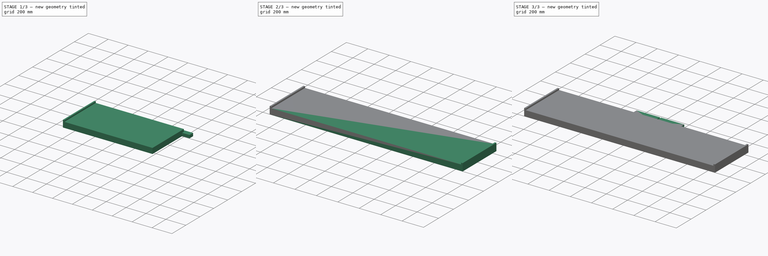
[diagram: build sequence overview — one tinted view per stage of 3, left to right]
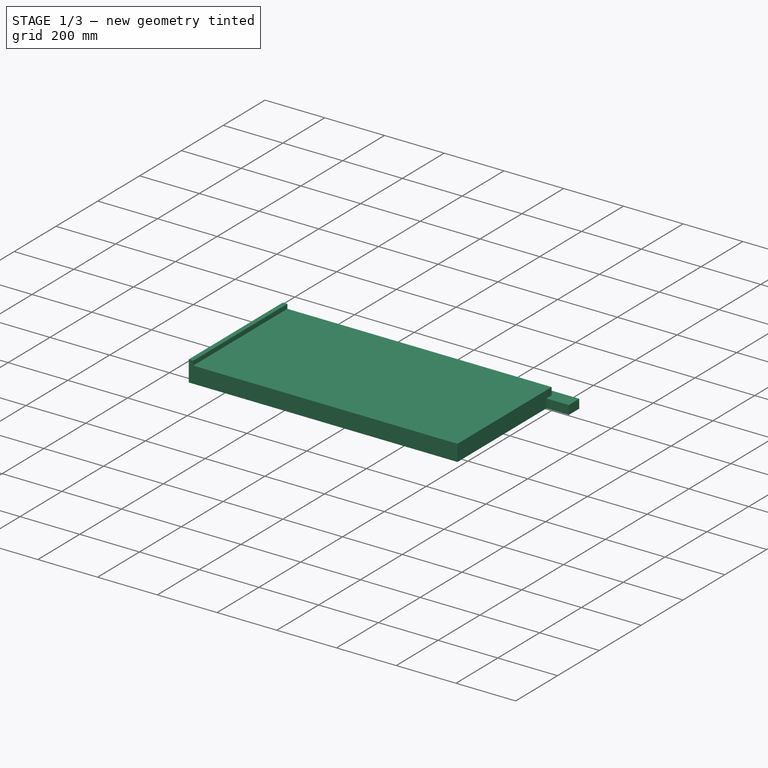
[diagram: stage 1 of 3 — iso view after this stage's code; geometry added in this stage tinted green]
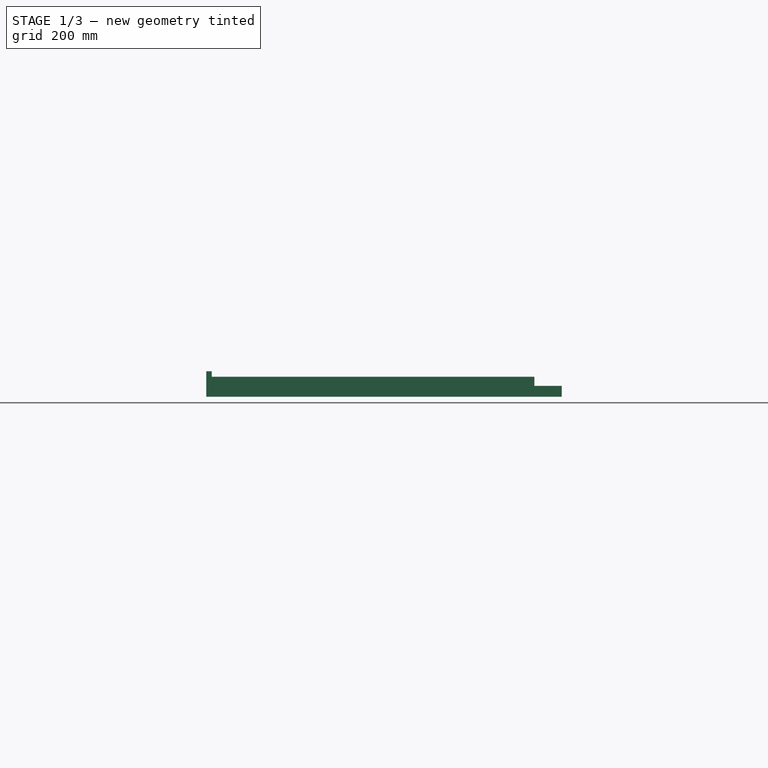
[diagram: stage 1 of 3 — front view after this stage's code; geometry added in this stage tinted green]
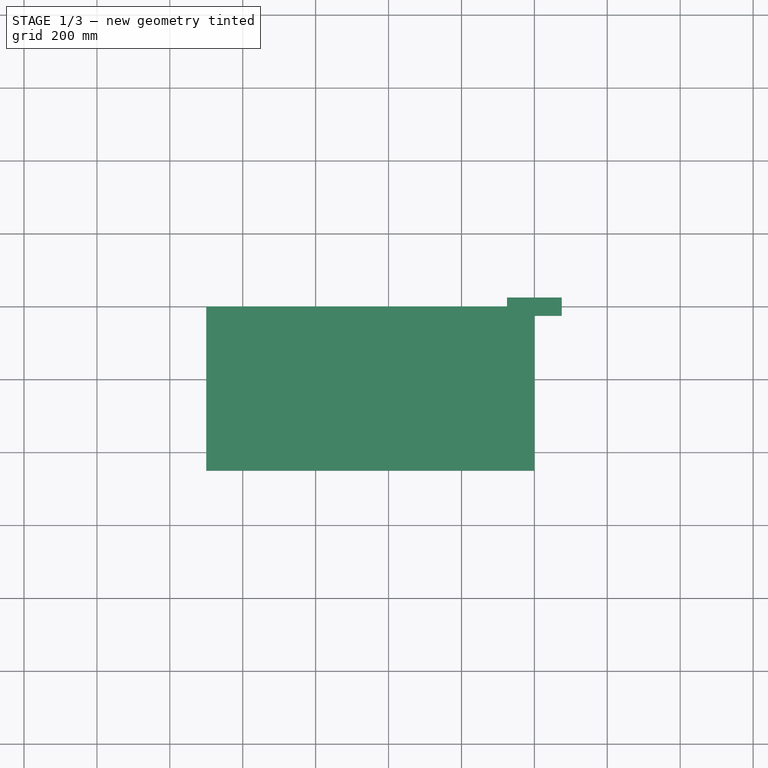
[diagram: stage 1 of 3 — top view after this stage's code; geometry added in this stage tinted green]
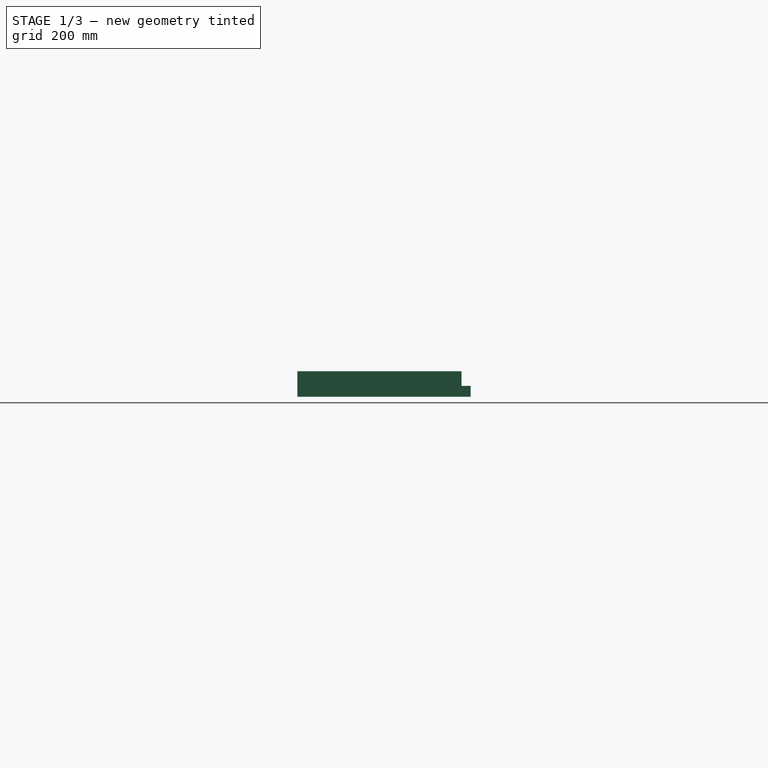
[diagram: stage 1 of 3 — right view after this stage's code; geometry added in this stage tinted green]
FCSTD DOCUMENT  (FreeCAD 1.1R20260414 (Git shallow))
Label: Aire_de_jeu_2026
License: All rights reserved
LicenseURL: https://en.wikipedia.org/wiki/All_rights_reserved
objects: App::LinkElement×29, App::Link×22, App::Point×10, Image::ImagePlane×8, App::Part×6, Part::Feature×5, Sketcher::SketchObject×4, PartDesign::Pad×4, PartDesign::Body×4, PartDesign::Mirrored×1
note: 31 computed .brp shape members not serialized (recipe doc carries the construction recipe); baked Part::Feature solids carry a one-line shape summary decoded from their .brp
EXTERNAL_REF file=GROS_BOT/Robot_CRLG.FCStd obj=Part

FEATURE [PartDesign::Body] Body004  label="support_calc_002"
  AllowCompound = false
  Group = -> [Sketch004,Pad004]
  Origin = -> Origin036
  Placement = pos=(225,1122,50) rot=(0,0,1;0rad)
  Tip = -> Pad004
FEATURE [App::LinkElement] Link007_i0
  LinkedObject = -> Part__Feature006
  _LinkOwner = 1159
FEATURE [App::LinkElement] Link007_i1
  LinkPlacement = pos=(950,-3088,-4.76837e-07) rot=(0,0,1;3.14159rad)
  LinkedObject = -> Part__Feature006
  Placement = pos=(950,-3088,-4.76837e-07) rot=(0,0,1;3.14159rad)
  _LinkOwner = 1159
FEATURE [App::Link] Link007  label="support balise001"
  ElementCount = 2
  ElementList = -> [Link007_i0,Link007_i1]
  LinkPlacement = pos=(-1544,-950.001,0) rot=(0,0,1;1.5708rad)
  LinkedObject = -> Part__Feature006
  Placement = pos=(-1544,-950.001,0) rot=(0,0,1;1.5708rad)
FEATURE [App::Part] Part  label="Supports_balise"
  Group = -> [Link007,Part__Feature008,Link,Link009]
  Origin = -> Origin
FEATURE [Part::Feature] Part__Feature  label="curseur_jaune"
  Placement = pos=(-1300,-1024,65) rot=(0,0,1;4.71239rad)
  shape: bbox 100 x 45 x 100 mm, 19 faces (baked)
FEATURE [App::Link] Link010  label="curseur_bleu"
  LinkPlacement = pos=(1300,-1024,65) rot=(0,0,-1;1.5708rad)
  LinkedObject = -> Part__Feature
  Placement = pos=(1300,-1024,65) rot=(0,0,-1;1.5708rad)
FEATURE [Image::ImagePlane] table  label="table001"
  XSize = 3000
  YSize = 2000
FEATURE [Sketcher::SketchObject] Sketch
  ArcFitTolerance = 1e-06
  AttachmentSupport = -> [XY_Plane037]
  ExternalTypes = [0]
  FullyConstrained = true
  MakeInternals = false
  MapMode = 5
  _ExternalGeoVersion = 0
  sketch-geometry (4):
    g0: LineSegment StartX=-75 StartY=25 StartZ=0 EndX=-75 EndY=-25 EndZ=0
    g1: LineSegment StartX=-75 StartY=-25 StartZ=0 EndX=75 EndY=-25 EndZ=0
    g2: LineSegment StartX=75 StartY=-25 StartZ=0 EndX=75 EndY=25 EndZ=0
    g3: LineSegment StartX=75 StartY=25 StartZ=0 EndX=-75 EndY=25 EndZ=0
  constraints (11):
    c: Coincident(g0,g1)
    c: Coincident(g1,g2)
    c: Coincident(g2,g3)
    c: Coincident(g3,g0)
    c: Vertical(g0)
    c: Vertical(g2)
    c: Horizontal(g1)
    c: Horizontal(g3)
    c: Symmetric(g2,g0,g-1)
    c: DistanceY(g0,g0) = 50
    c: DistanceX(g3,g3) = 150
FEATURE [PartDesign::Pad] Pad
  Direction = (0,0,1)
  Length = 30
  Length2 = 10
  Profile = -> Sketch
  ReferenceAxis = -> Sketch [N_Axis]
  SideType = 0
  Suppressed = false
  Type = 0
  Type2 = 0
FEATURE [PartDesign::Body] Body  label="caisse_noisette_part"
  AllowCompound = false
  Group = -> [Sketch,Pad]
  Origin = -> Origin037
  Tip = -> Pad
FEATURE [Sketcher::SketchObject] Sketch005
  ArcFitTolerance = 1e-06
  AttachmentSupport = -> [XZ_Plane038]
  ExternalTypes = [0]
  FullyConstrained = true
  MakeInternals = false
  MapMode = 5
  Placement = pos=(0,0,0) rot=(1,0,0;1.5708rad)
  _ExternalGeoVersion = 0
  expr: Constraints[12] = 1800 / 2
  sketch-geometry (6):
    g0: LineSegment StartX=-900 StartY=0 StartZ=0 EndX=0 EndY=0 EndZ=0
    g1: LineSegment StartX=0 StartY=0 StartZ=0 EndX=0 EndY=55 EndZ=0
    g2: LineSegment StartX=-885 StartY=70 StartZ=0 EndX=-900 EndY=70 EndZ=0
    g3: LineSegment StartX=-900 StartY=70 StartZ=0 EndX=-900 EndY=0 EndZ=0
    g4: LineSegment StartX=-885 StartY=70 StartZ=0 EndX=-885 EndY=55 EndZ=0
    g5: LineSegment StartX=-885 StartY=55 StartZ=0 EndX=0 EndY=55 EndZ=0
  constraints (17):
    c: Coincident(g0,g1)
    c: Coincident(g2,g3)
    c: Coincident(g3,g0)
    c: Horizontal(g0)
    c: Horizontal(g2)
    c: Vertical(g1)
    c: Vertical(g3)
    c: Vertical(g4)
    c: Coincident(g5,g4)
    c: Horizontal(g5)
    c: Coincident(g2,g4)
    c: Coincident(g1,g5)
    c: DistanceX(g0,g0) = 900
    c: DistanceY(g3,g3) = 70
    c: DistanceX(g2,g2) = 15
    c: DistanceY(g-1,g4) = 55
    c: Coincident(g0,g-1)
FEATURE [PartDesign::Pad] Pad005
  Direction = (0,-1,2e-16)
  Length = 450
  Length2 = 10
  Placement = pos=(0,0,0) rot=(1,0,0;1.5708rad)
  Profile = -> Sketch005
  ReferenceAxis = -> Sketch005 [N_Axis]
  SideType = 0
  Suppressed = false
  Type = 0
  Type2 = 0
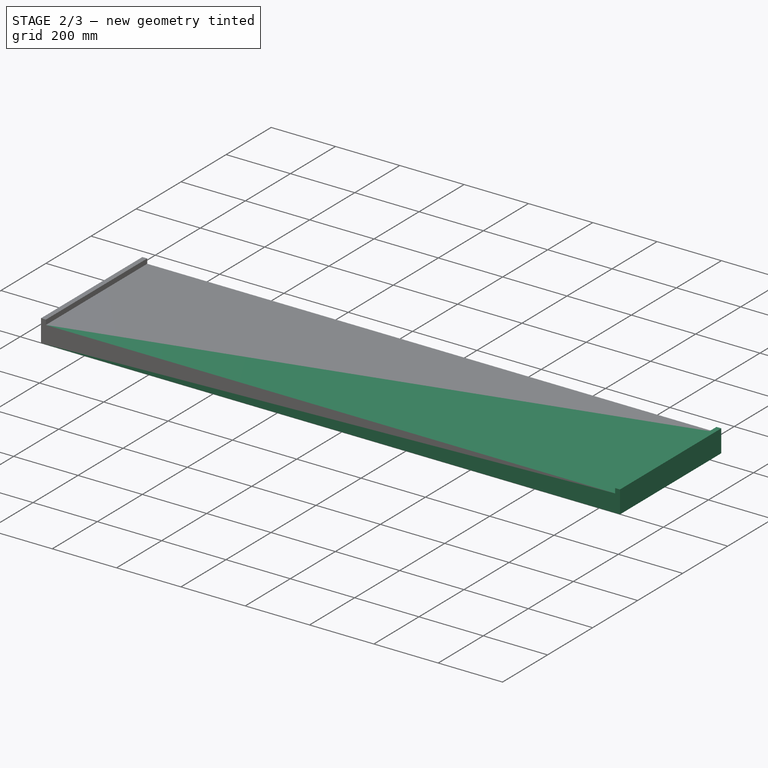
[diagram: stage 2 of 3 — iso view after this stage's code; geometry added in this stage tinted green]
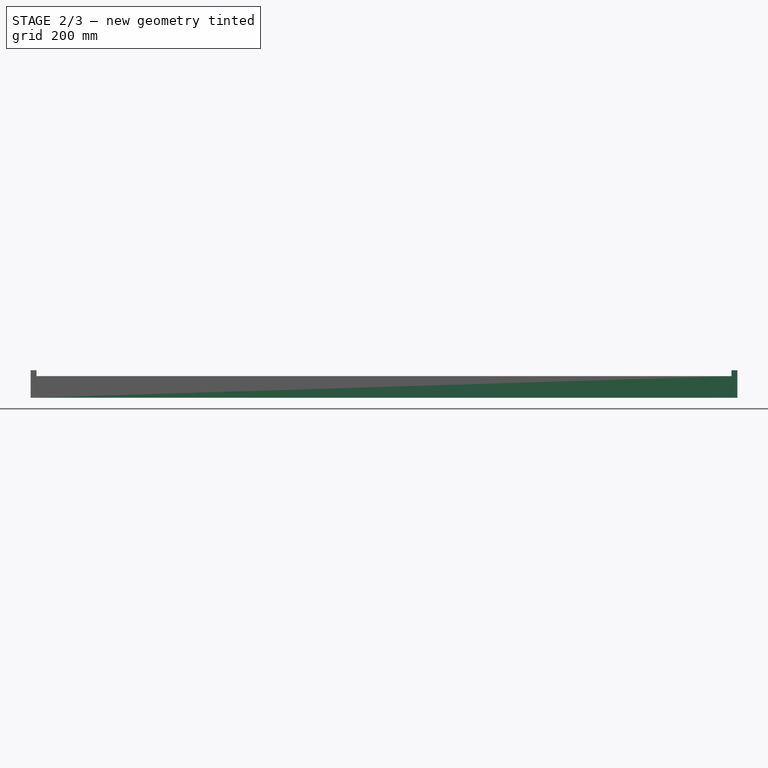
[diagram: stage 2 of 3 — front view after this stage's code; geometry added in this stage tinted green]
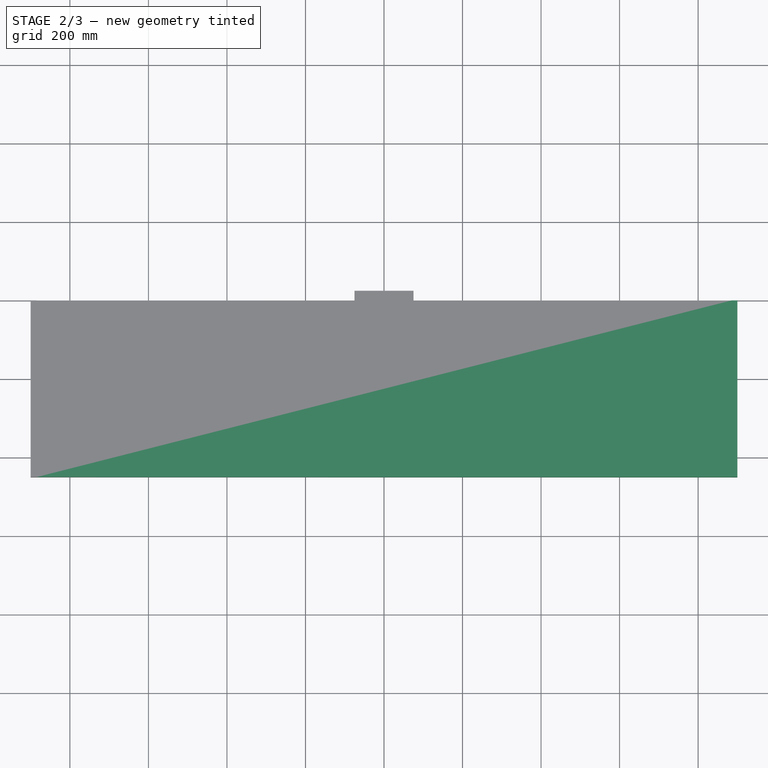
[diagram: stage 2 of 3 — top view after this stage's code; geometry added in this stage tinted green]
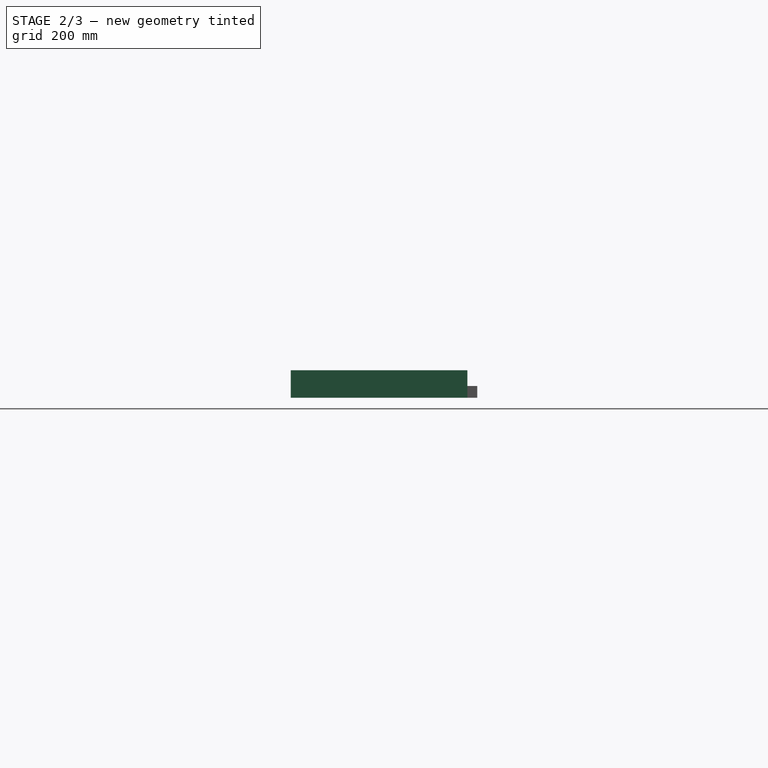
[diagram: stage 2 of 3 — right view after this stage's code; geometry added in this stage tinted green]
FEATURE [PartDesign::Mirrored] Mirrored
  BaseFeature = -> Pad005
  MirrorPlane = -> Sketch005 [V_Axis]
  Originals = -> [Pad005]
  Placement = pos=(0,0,0) rot=(1,0,0;1.5708rad)
  Refine = true
  Suppressed = false
  TransformMode = 0
FEATURE [PartDesign::Body] Body005  label="Grenier"
  AllowCompound = false
  Group = -> [Sketch005,Pad005,Mirrored]
  Origin = -> Origin038
  Placement = pos=(0,1000,0) rot=(0,0,1;0rad)
  Tip = -> Mirrored
FEATURE [App::Part] Part010  label="composants_table"
  Group = -> [Part__Feature001,Part__Feature006,Part__Feature007,Part,Body003,Body004,Body005]
  Origin = -> Origin016
FEATURE [Image::ImagePlane] grenier
  Placement = pos=(8,777,55) rot=(0,0,1;0rad)
  XSize = 1792.55
  YSize = 451.143
FEATURE [App::LinkElement] Link011_i0
  LinkedObject = -> Part012
  _LinkOwner = 1638
FEATURE [App::LinkElement] Link011_i1
  LinkPlacement = pos=(0,50,30) rot=(1,0,0;3.14159rad)
  LinkedObject = -> Part012
  Placement = pos=(0,50,30) rot=(1,0,0;3.14159rad)
  _LinkOwner = 1638
FEATURE [App::LinkElement] Link011_i2
  LinkPlacement = pos=(0,100,0) rot=(0,0,1;0rad)
  LinkedObject = -> Part012
  Placement = pos=(0,100,0) rot=(0,0,1;0rad)
  _LinkOwner = 1638
FEATURE [App::LinkElement] Link011_i3
  LinkPlacement = pos=(0.00012207,150,0) rot=(0,0,1;0rad)
  LinkedObject = -> Part012
  Placement = pos=(0.00012207,150,0) rot=(0,0,1;0rad)
  _LinkOwner = 1638
FEATURE [App::Link] Link011  label="caisse_noisette001"
  ElementCount = 4
  ElementList = -> [Link011_i0,Link011_i1,Link011_i2,Link011_i3]
  LinkPlacement = pos=(-1325,125,0) rot=(0,0,1;0rad)
  LinkedObject = -> Part012
  Placement = pos=(-1325,125,0) rot=(0,0,1;0rad)
FEATURE [App::LinkElement] Link016_i0
  LinkedObject = -> Part012
  _LinkOwner = 1665
FEATURE [App::LinkElement] Link016_i1
  LinkPlacement = pos=(2.91038e-11,50,30) rot=(1,0,0;3.14159rad)
  LinkedObject = -> Part012
  Placement = pos=(2.91038e-11,50,30) rot=(1,0,0;3.14159rad)
  _LinkOwner = 1665
FEATURE [App::LinkElement] Link016_i2
  LinkPlacement = pos=(0,100,0) rot=(0,0,1;0rad)
  LinkedObject = -> Part012
  Placement = pos=(0,100,0) rot=(0,0,1;0rad)
  _LinkOwner = 1665
FEATURE [App::LinkElement] Link016_i3
  LinkPlacement = pos=(0,150,0) rot=(0,0,1;0rad)
  LinkedObject = -> Part012
  Placement = pos=(0,150,0) rot=(0,0,1;0rad)
  _LinkOwner = 1665
FEATURE [App::Link] Link016  label="caisse_noisette006"
  ElementCount = 4
  ElementList = -> [Link016_i0,Link016_i1,Link016_i2,Link016_i3]
  LinkPlacement = pos=(-629,678,50) rot=(0,0,1;1.5708rad)
  LinkedObject = -> Part012
  Placement = pos=(-629,678,50) rot=(0,0,1;1.5708rad)
FEATURE [App::LinkElement] Link015_i0
  LinkPlacement = pos=(1.09139e-11,2.7982e-05,30) rot=(1,0,0;3.14159rad)
  LinkedObject = -> Part012
  Placement = pos=(1.09139e-11,2.7982e-05,30) rot=(1,0,0;3.14159rad)
  _LinkOwner = 1664
FEATURE [App::LinkElement] Link015_i1
  LinkPlacement = pos=(0,50,0) rot=(0,0,1;0rad)
  LinkedObject = -> Part012
  Placement = pos=(0,50,0) rot=(0,0,1;0rad)
  _LinkOwner = 1664
FEATURE [App::Link] Link015  label="caisse_noisette005"
  ElementCount = 2
  ElementList = -> [Link015_i0,Link015_i1]
  LinkPlacement = pos=(-429,726,50) rot=(0,0,-1;1.5708rad)
  LinkedObject = -> Part012
  Placement = pos=(-429,726,50) rot=(0,0,-1;1.5708rad)
FEATURE [App::LinkElement] Link017_i0
  LinkedObject = -> Part012
  _LinkOwner = 1672
FEATURE [App::LinkElement] Link017_i1
  LinkPlacement = pos=(6.10352e-05,50,30) rot=(1,0,0;3.14159rad)
  LinkedObject = -> Part012
  Placement = pos=(6.10352e-05,50,30) rot=(1,0,0;3.14159rad)
  _LinkOwner = 1672
FEATURE [App::Link] Link017  label="caisse_noisette007"
  ElementCount = 2
  ElementList = -> [Link017_i0,Link017_i1]
  LinkPlacement = pos=(-177,777,50) rot=(0,0,-1;1.5708rad)
  LinkedObject = -> Part012
  Placement = pos=(-177,777,50) rot=(0,0,-1;1.5708rad)
FEATURE [App::LinkElement] Link018_i0
  LinkedObject = -> Part013
  _LinkOwner = 1675
FEATURE [App::LinkElement] Link018_i1
  LinkPlacement = pos=(0,50,0) rot=(0,0,1;0rad)
  LinkedObject = -> Part013
  Placement = pos=(0,50,0) rot=(0,0,1;0rad)
  _LinkOwner = 1675
FEATURE [App::LinkElement] Link018_i2
  LinkPlacement = pos=(0,100,0) rot=(0,0,1;0rad)
  LinkedObject = -> Part013
  Placement = pos=(0,100,0) rot=(0,0,1;0rad)
  _LinkOwner = 1675
FEATURE [App::Link] Link018  label="caisse_noisette008"
  ElementCount = 3
  ElementList = -> [Link018_i0,Link018_i1,Link018_i2]
  LinkPlacement = pos=(-654,678,80) rot=(0,0,1;1.5708rad)
  LinkedObject = -> Part013
  Placement = pos=(-654,678,80) rot=(0,0,1;1.5708rad)
FEATURE [Image::ImagePlane] thermometre_bleu
  Placement = pos=(801,-1022,19) rot=(1,0,0;1.5708rad)
  XSize = 1401.35
  YSize = 69.9407
FEATURE [Image::ImagePlane] thermometre_jaune
  Placement = pos=(-795,-1022,19) rot=(1,0,0;1.5708rad)
  XSize = 1401.02
  YSize = 69.9407
FEATURE [Image::ImagePlane] caisse_noisette_aruco_bleu
  Placement = pos=(0,0,30) rot=(0,0,1;0rad)
  XSize = 48.2642
  YSize = 49.7883
FEATURE [Image::ImagePlane] caisse_noisette_aruco_jaune
  Placement = pos=(0,0,0) rot=(0,1,0;3.14159rad)
  XSize = 48.2642
  YSize = 50.127
FEATURE [App::Part] Part012  label="caisse_noisette"
  Group = -> [Body,caisse_noisette_aruco_bleu,caisse_noisette_aruco_jaune]
  Origin = -> Origin039
FEATURE [App::Link] Link019  label="caisse_noisette_part001"
  LinkedObject = -> Body
FEATURE [Image::ImagePlane] caisse_noisette_aruco_pourrie
  Placement = pos=(0,0,0) rot=(0,1,0;3.14159rad)
  XSize = 49.1109
  YSize = 49.9577
FEATURE [Image::ImagePlane] caisse_noisette_aruco_pourrie001
  Placement = pos=(0,0,30) rot=(0,0,1;0rad)
  XSize = 49.1109
  YSize = 49.9577
FEATURE [App::Part] Part013  label="caisse_noisette_pourrie"
  Group = -> [Link019,caisse_noisette_aruco_pourrie001,caisse_noisette_aruco_pourrie]
  Origin = -> Origin040
FEATURE [App::LinkElement] Link020_i0
  LinkPlacement = pos=(0,5.84125e-05,30) rot=(1,0,0;3.14159rad)
  LinkedObject = -> Part012
  Placement = pos=(0,5.84125e-05,30) rot=(1,0,0;3.14159rad)
  _LinkOwner = 1708
FEATURE [App::LinkElement] Link020_i1
  LinkPlacement = pos=(0,50,0) rot=(0,0,1;0rad)
  LinkedObject = -> Part012
  Placement = pos=(0,50,0) rot=(0,0,1;0rad)
  _LinkOwner = 1708
FEATURE [App::LinkElement] Link020_i2
  LinkPlacement = pos=(0,100,0) rot=(0,0,1;0rad)
  LinkedObject = -> Part012
  Placement = pos=(0,100,0) rot=(0,0,1;0rad)
  _LinkOwner = 1708
FEATURE [App::LinkElement] Link020_i3
  LinkPlacement = pos=(0.000244141,150,30) rot=(1,0,0;3.14159rad)
  LinkedObject = -> Part012
  Placement = pos=(0.000244141,150,30) rot=(1,0,0;3.14159rad)
  _LinkOwner = 1708
FEATURE [App::Link] Link020  label="caisse_noisette002"
  ElementCount = 4
  ElementList = -> [Link020_i0,Link020_i1,Link020_i2,Link020_i3]
  LinkPlacement = pos=(-1325,-675,0) rot=(0,0,1;0rad)
  LinkedObject = -> Part012
  Placement = pos=(-1325,-675,0) rot=(0,0,1;0rad)
FEATURE [App::LinkElement] Link022_i0
  LinkedObject = -> Part012
  _LinkOwner = 1717
FEATURE [App::LinkElement] Link022_i1
  LinkPlacement = pos=(-4.57764e-05,50,30) rot=(1,0,0;3.14159rad)
  LinkedObject = -> Part012
  Placement = pos=(-4.57764e-05,50,30) rot=(1,0,0;3.14159rad)
  _LinkOwner = 1717
FEATURE [App::LinkElement] Link022_i2
  LinkPlacement = pos=(0,100,0) rot=(0,0,1;0rad)
  LinkedObject = -> Part012
  Placement = pos=(0,100,0) rot=(0,0,1;0rad)
  _LinkOwner = 1717
FEATURE [App::LinkElement] Link022_i3
  LinkPlacement = pos=(4.57764e-05,150,30) rot=(1,0,0;3.14159rad)
  LinkedObject = -> Part012
  Placement = pos=(4.57764e-05,150,30) rot=(1,0,0;3.14159rad)
  _LinkOwner = 1717
FEATURE [App::Link] Link022  label="caisse_noisette003"
  ElementCount = 4
  ElementList = -> [Link022_i0,Link022_i1,Link022_i2,Link022_i3]
  LinkPlacement = pos=(-425,-200,0) rot=(0,0,-1;1.5708rad)
  LinkedObject = -> Part012
  Placement = pos=(-425,-200,0) rot=(0,0,-1;1.5708rad)
FEATURE [App::LinkElement] Link021_i0
  LinkPlacement = pos=(0,2.78949e-05,30) rot=(1,0,0;3.14159rad)
  LinkedObject = -> Part012
  Placement = pos=(0,2.78949e-05,30) rot=(1,0,0;3.14159rad)
  _LinkOwner = 1716
FEATURE [App::LinkElement] Link021_i1
  LinkPlacement = pos=(-6.10352e-05,50,30) rot=(1,0,0;3.14159rad)
  LinkedObject = -> Part012
  Placement = pos=(-6.10352e-05,50,30) rot=(1,0,0;3.14159rad)
  _LinkOwner = 1716
FEATURE [App::LinkElement] Link021_i2
  LinkPlacement = pos=(0,100,0) rot=(0,0,1;0rad)
  LinkedObject = -> Part012
  Placement = pos=(0,100,0) rot=(0,0,1;0rad)
  _LinkOwner = 1716
FEATURE [App::LinkElement] Link021_i3
  LinkPlacement = pos=(0,150,0) rot=(0,0,1;0rad)
  LinkedObject = -> Part012
  Placement = pos=(0,150,0) rot=(0,0,1;0rad)
  _LinkOwner = 1716
FEATURE [App::Link] Link021  label="caisse_noisette004"
  ElementCount = 4
  ElementList = -> [Link021_i0,Link021_i1,Link021_i2,Link021_i3]
  LinkPlacement = pos=(-325,-825,0) rot=(0,0,1;1.5708rad)
  LinkedObject = -> Part012
  Placement = pos=(-325,-825,0) rot=(0,0,1;1.5708rad)
FEATURE [App::Link] Link023  label="caisse_noisette009"
  LinkPlacement = pos=(1325,125,0) rot=(0,0,1;0rad)
  LinkedObject = -> Link020
  Placement = pos=(1325,125,0) rot=(0,0,1;0rad)
FEATURE [App::Link] Link024  label="caisse_noisette010"
  LinkPlacement = pos=(1325,-675,0) rot=(0,0,1;0rad)
  LinkedObject = -> Link021
  Placement = pos=(1325,-675,0) rot=(0,0,1;0rad)
FEATURE [App::Link] Link025  label="caisse_noisette011"
  LinkPlacement = pos=(475,-826,0) rot=(0,0,1;1.5708rad)
  LinkedObject = -> Link022
  Placement = pos=(475,-826,0) rot=(0,0,1;1.5708rad)
FEATURE [App::Link] Link026  label="caisse_noisette012"
  LinkPlacement = pos=(424,-200,0) rot=(0,0,1;1.5708rad)
  LinkedObject = -> Link011
  Placement = pos=(424,-200,0) rot=(0,0,1;1.5708rad)
FEATURE [App::Link] Link027  label="caisse_noisette013"
  LinkPlacement = pos=(123,777,50) rot=(0,0,-1;1.5708rad)
  LinkedObject = -> Link015
  Placement = pos=(123,777,50) rot=(0,0,-1;1.5708rad)
FEATURE [App::Link] Link028  label="caisse_noisette014"
  LinkPlacement = pos=(624,677,50) rot=(0,0,-1;1.5708rad)
  LinkedObject = -> Link016
  Placement = pos=(624,677,50) rot=(0,0,-1;1.5708rad)
FEATURE [App::Link] Link029  label="caisse_noisette015"
  LinkPlacement = pos=(373,728,50) rot=(0,0,-1;1.5708rad)
  LinkedObject = -> Link017
  Placement = pos=(373,728,50) rot=(0,0,-1;1.5708rad)
FEATURE [App::Link] Link030  label="caisse_noisette016"
  LinkPlacement = pos=(649,677,80) rot=(0,0,-1;1.5708rad)
  LinkedObject = -> Link018
  Placement = pos=(649,677,80) rot=(0,0,-1;1.5708rad)
FEATURE [App::Part] Part011  label="Elements_de_jeu"
  Group = -> [Part__Feature,Link010,Part012,Part013,Link011,Link020,Link022,Link021,Link015,Link016,Link017,Link018,Link023,Link024,Link025,Link026,Link027,Link028,Link029,Link030]
  Origin = -> Origin019
FEATURE [App::Part] Part009  label="Plateau_2026"
  Group = -> [table,grenier,thermometre_bleu,thermometre_jaune,Part010,Part011]
  Origin = -> Origin015
  Placement = pos=(0,0,-5) rot=(0,0,1;0rad)
FEATURE [App::Point] Origin041  label="Origine"
  Role = Origin
FEATURE [App::Point] Origin042  label="Origine"
  Role = Origin
FEATURE [App::Point] Origin043  label="Origine"
  Role = Origin
FEATURE [App::Point] Origin044  label="Origine"
  Role = Origin
FEATURE [App::Point] Origin045  label="Origine"
  Role = Origin
FEATURE [App::Point] Origin046  label="Origine"
  Role = Origin
FEATURE [App::Point] Origin047  label="Origine"
  Role = Origin
FEATURE [App::Point] Origin048  label="Origine"
  Role = Origin
FEATURE [App::Point] Origin049  label="Origine"
  Role = Origin
FEATURE [App::Point] Origin050  label="Origine"
  Role = Origin
FEATURE [App::Link] Link031  label="GROS_BOT"
  LinkPlacement = pos=(-1301,-780,7) rot=(0,0,-1;4.71239rad)
  LinkedObject = -> <external GROS_BOT/Robot_CRLG.FCStd>#Part
  Placement = pos=(-1301,-780,7) rot=(0,0,-1;4.71239rad)
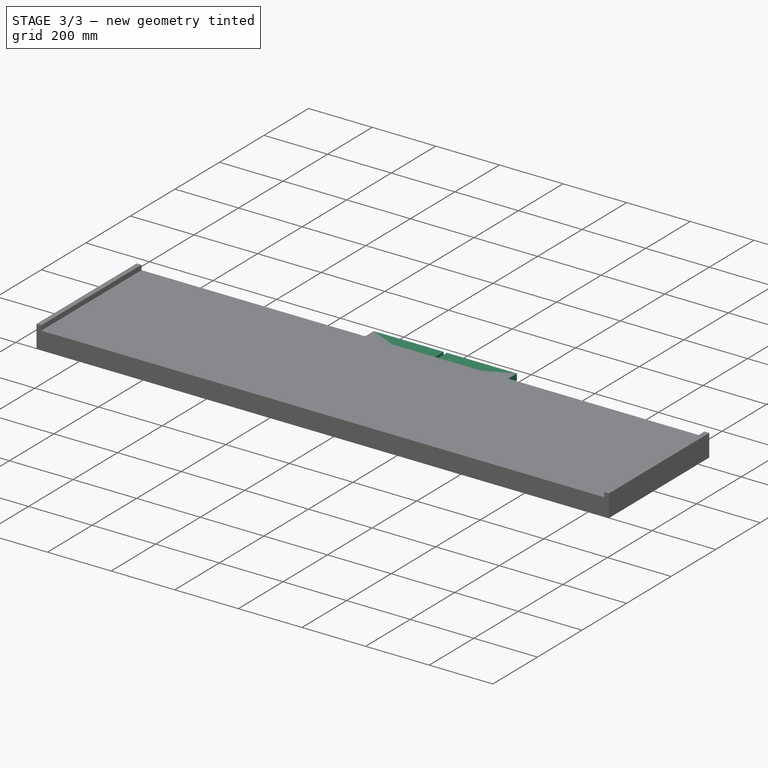
[diagram: stage 3 of 3 — iso view after this stage's code; geometry added in this stage tinted green]
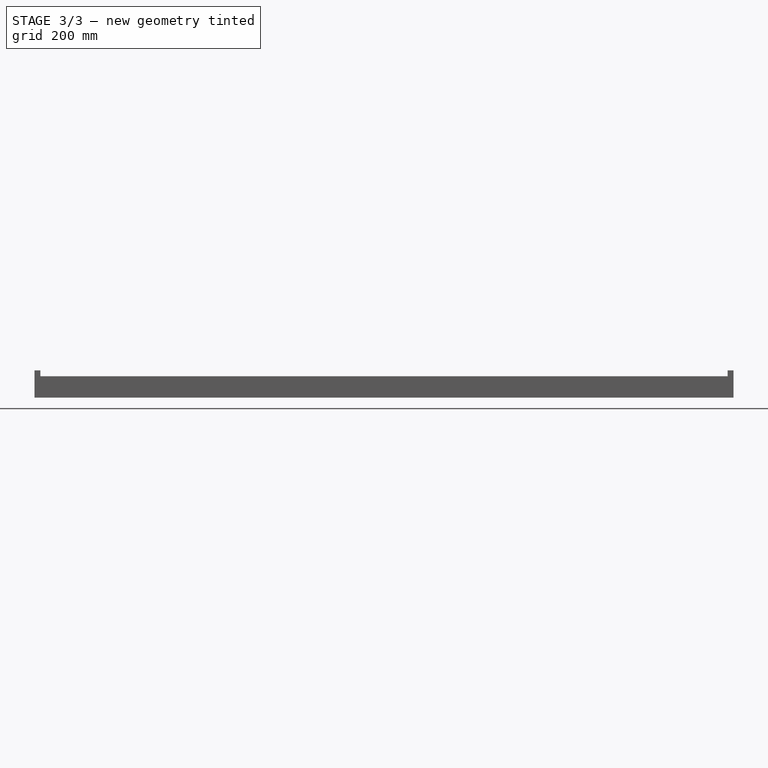
[diagram: stage 3 of 3 — front view after this stage's code; geometry added in this stage tinted green]
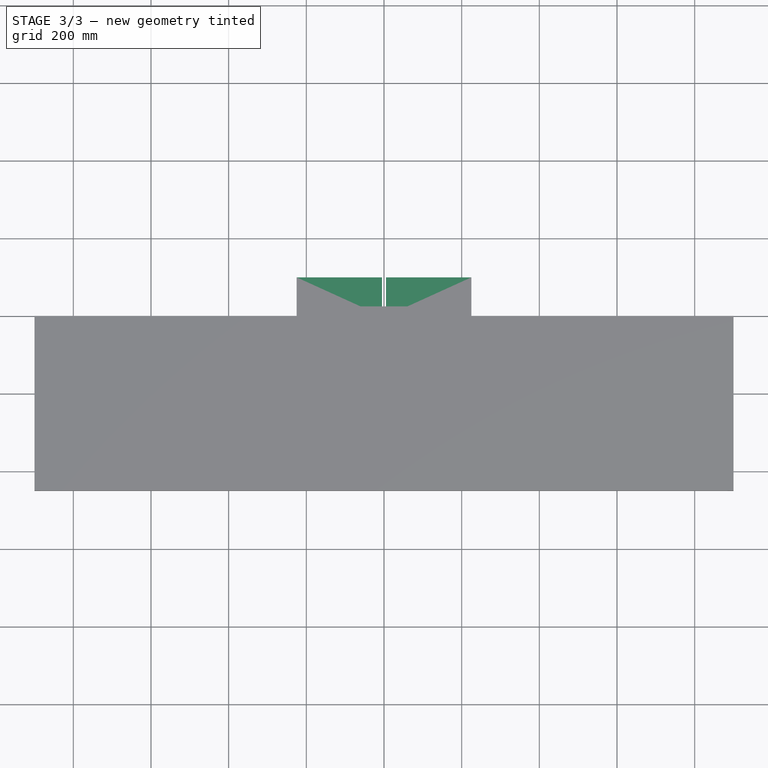
[diagram: stage 3 of 3 — top view after this stage's code; geometry added in this stage tinted green]
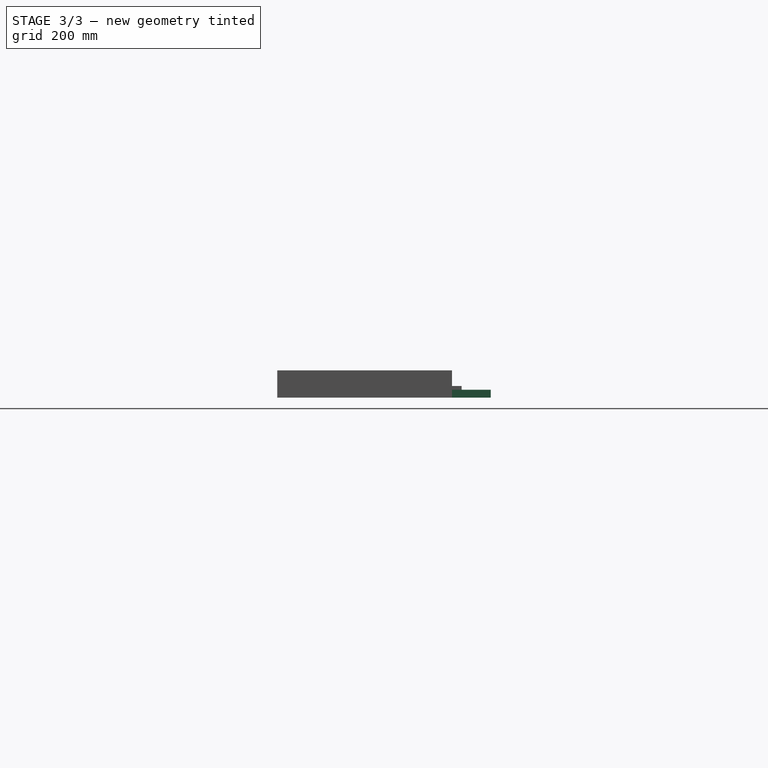
[diagram: stage 3 of 3 — right view after this stage's code; geometry added in this stage tinted green]
FEATURE [Part::Feature] Part__Feature001  label="Marqueur d'identification"
  Placement = pos=(-302,0,0) rot=(0,0,1;0rad)
  shape: bbox 100 x 100 x 20 mm, 6 faces (baked)
FEATURE [Part::Feature] Part__Feature006  label="support balise"
  Placement = pos=(-1544,949,0) rot=(0,0,1;1.5708rad)
  shape: bbox 122 x 144 x 82 mm, 27 faces (baked)
FEATURE [Part::Feature] Part__Feature007  label="table"
  shape: bbox 3044 x 2044 x 92 mm, 11 faces (baked)
FEATURE [Part::Feature] Part__Feature008  label="support balise002"
  Placement = pos=(1544,949,0) rot=(0,0,1;-1.5708rad)
  shape: bbox 122 x 144 x 82 mm, 27 faces (baked)
FEATURE [App::Link] Link  label="support balise003"
  LinkPlacement = pos=(1544,-949,0) rot=(0,0,1;-1.5708rad)
  LinkedObject = -> Part__Feature008
  Placement = pos=(1544,-949,0) rot=(0,0,1;-1.5708rad)
FEATURE [App::Link] Link009  label="support balise005"
  LinkPlacement = pos=(-1544,0,0) rot=(0,0,1;1.5708rad)
  LinkedObject = -> Link
  Placement = pos=(-1544,0,0) rot=(0,0,1;1.5708rad)
FEATURE [Sketcher::SketchObject] Sketch003
  ArcFitTolerance = 1e-06
  AttachmentSupport = -> [XY_Plane022]
  ExternalTypes = [0]
  FullyConstrained = true
  MakeInternals = false
  MapMode = 5
  _ExternalGeoVersion = 0
  sketch-geometry (8):
    g0: LineSegment StartX=-225 StartY=100 StartZ=0 EndX=-225 EndY=-100 EndZ=0
    g1: LineSegment StartX=-225 StartY=-100 StartZ=0 EndX=225 EndY=-100 EndZ=0
    g2: LineSegment StartX=225 StartY=-100 StartZ=0 EndX=225 EndY=100 EndZ=0
    g3: LineSegment StartX=225 StartY=100 StartZ=0 EndX=5 EndY=100 EndZ=0
    g4: ArcOfCircle CenterX=-6.7e-15 CenterY=1.9218e-12 CenterZ=0 NormalX=0 NormalY=0 NormalZ=1 AngleXU=0 Radius=5 StartAngle=3.14159 EndAngle=6.28319
    g5: LineSegment StartX=5 StartY=100 StartZ=0 EndX=5 EndY=2.9985e-12 EndZ=0
    g6: LineSegment StartX=-5 StartY=100 StartZ=0 EndX=-5 EndY=1.705e-13 EndZ=0
    g7: LineSegment StartX=-5 StartY=100 StartZ=0 EndX=-225 EndY=100 EndZ=0
  constraints (22):
    c: Coincident(g0,g1)
    c: Coincident(g1,g2)
    c: Coincident(g2,g3)
    c: Coincident(g7,g0)
    c: Vertical(g0)
    c: Vertical(g2)
    c: Horizontal(g1)
    c: Horizontal(g3)
    c: Distance(g0,g2) = 450
    c: Distance(g1,g7) = 200
    c: Tangent(g4,g5) = 1.5708
    c: Tangent(g4,g6) = -1.5708
    c: Vertical(g6)
    c: Equal(g3,g7)
    c: Coincident(g3,g5)
    c: Coincident(g6,g7)
    c: Horizontal(g5,g6)
    c: Vertical(g5)
    c: Radius(g4) = 5
    c: DistanceY(g4,g6) = 100
    c: Horizontal(g7)
    c: Symmetric(g0,g2,g-1)
FEATURE [PartDesign::Pad] Pad003
  Direction = (0,0,1)
  Length = 20.1
  Length2 = 10
  Profile = -> Sketch003
  ReferenceAxis = -> Sketch003 [N_Axis]
  SideType = 0
  Suppressed = false
  Type = 0
  Type2 = 0
FEATURE [PartDesign::Body] Body003  label="support_calc_1"
  AllowCompound = false
  Group = -> [Sketch003,Pad003]
  Origin = -> Origin022
  Placement = pos=(-225,1122,50) rot=(0,0,1;0rad)
  Tip = -> Pad003
FEATURE [Sketcher::SketchObject] Sketch004
  ArcFitTolerance = 1e-06
  AttachmentSupport = -> [XY_Plane036]
  ExternalTypes = [0]
  FullyConstrained = true
  MakeInternals = false
  MapMode = 5
  _ExternalGeoVersion = 0
  sketch-geometry (8):
    g0: LineSegment StartX=-225 StartY=100 StartZ=0 EndX=-225 EndY=-100 EndZ=0
    g1: LineSegment StartX=-225 StartY=-100 StartZ=0 EndX=225 EndY=-100 EndZ=0
    g2: LineSegment StartX=225 StartY=-100 StartZ=0 EndX=225 EndY=100 EndZ=0
    g3: LineSegment StartX=225 StartY=100 StartZ=0 EndX=5 EndY=100 EndZ=0
    g4: ArcOfCircle CenterX=-6.7e-15 CenterY=1.9218e-12 CenterZ=0 NormalX=0 NormalY=0 NormalZ=1 AngleXU=0 Radius=5 StartAngle=3.14159 EndAngle=6.28319
    g5: LineSegment StartX=5 StartY=100 StartZ=0 EndX=5 EndY=2.9985e-12 EndZ=0
    g6: LineSegment StartX=-5 StartY=100 StartZ=0 EndX=-5 EndY=1.705e-13 EndZ=0
    g7: LineSegment StartX=-5 StartY=100 StartZ=0 EndX=-225 EndY=100 EndZ=0
  constraints (22):
    c: Coincident(g0,g1)
    c: Coincident(g1,g2)
    c: Coincident(g2,g3)
    c: Coincident(g7,g0)
    c: Vertical(g0)
    c: Vertical(g2)
    c: Horizontal(g1)
    c: Horizontal(g3)
    c: Distance(g0,g2) = 450
    c: Distance(g1,g7) = 200
    c: Tangent(g4,g5) = 1.5708
    c: Tangent(g4,g6) = -1.5708
    c: Vertical(g6)
    c: Equal(g3,g7)
    c: Coincident(g3,g5)
    c: Coincident(g6,g7)
    c: Horizontal(g5,g6)
    c: Vertical(g5)
    c: Radius(g4) = 5
    c: DistanceY(g4,g6) = 100
    c: Horizontal(g7)
    c: Symmetric(g0,g2,g-1)
FEATURE [PartDesign::Pad] Pad004
  Direction = (0,0,1)
  Length = 20.1
  Length2 = 10
  Profile = -> Sketch004
  ReferenceAxis = -> Sketch004 [N_Axis]
  SideType = 0
  Suppressed = false
  Type = 0
  Type2 = 0
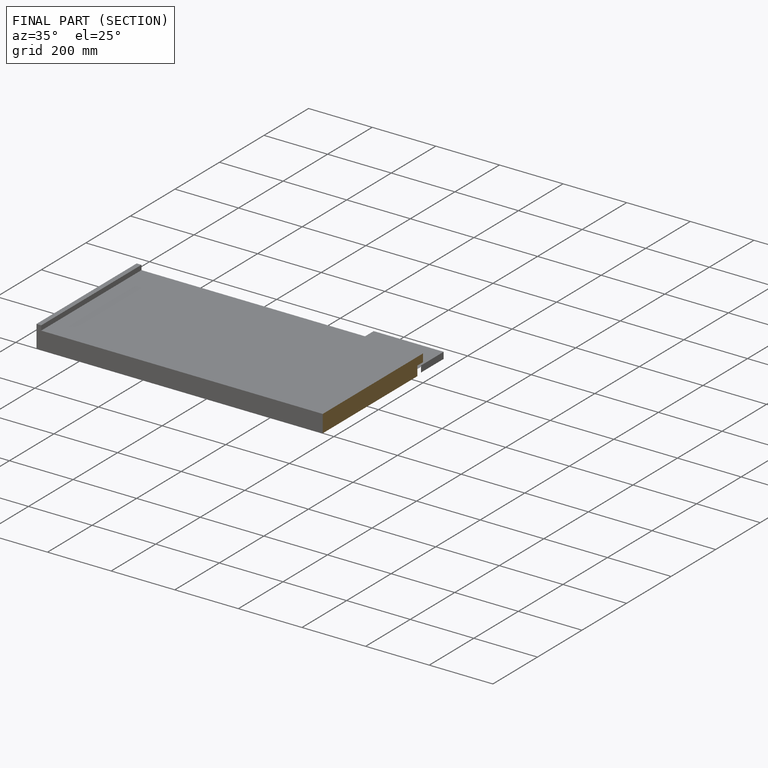
[diagram: finished part — half-section view (interior)]
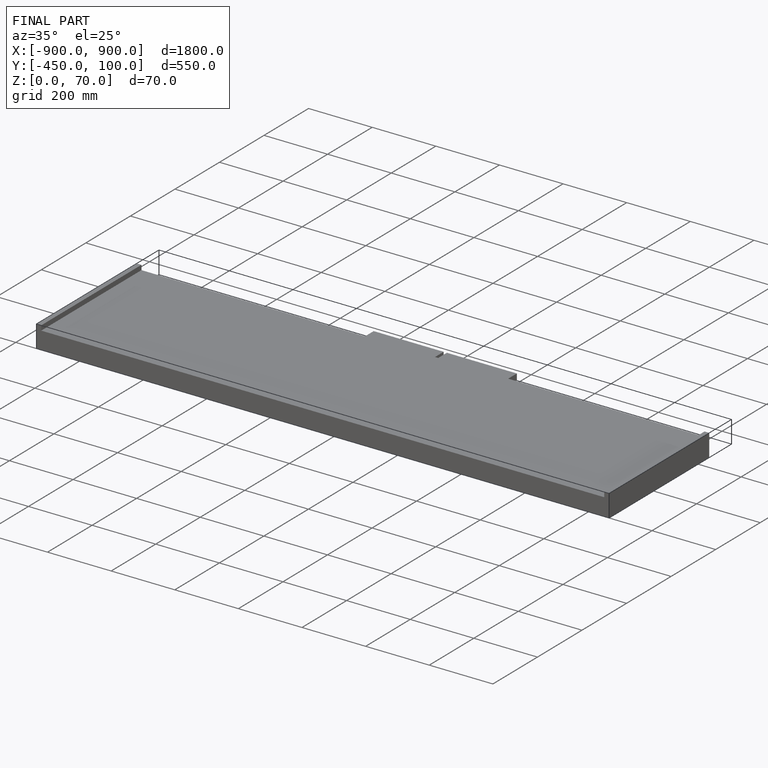
[diagram: finished part — iso view with bounding-box wireframe]
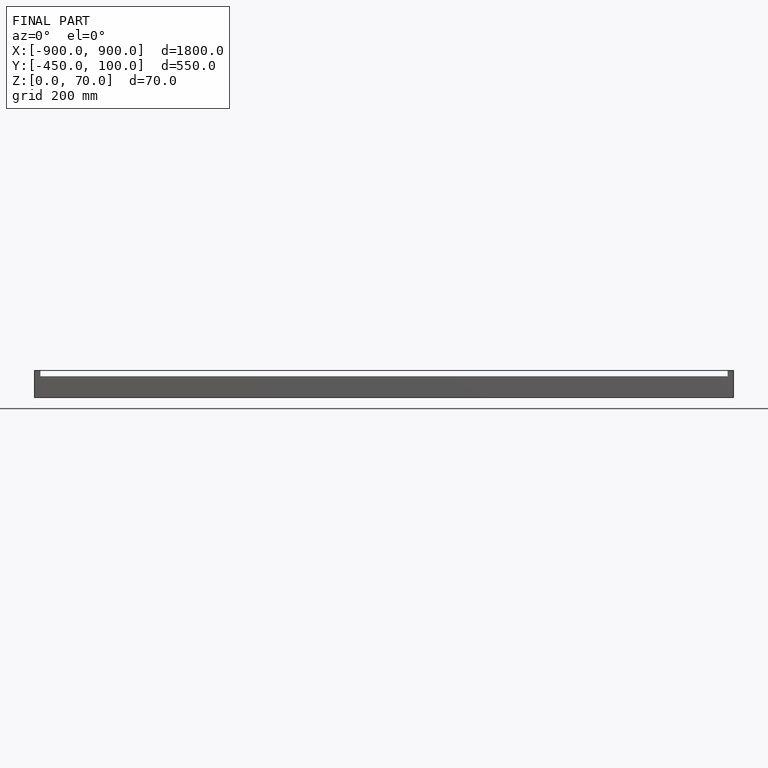
[diagram: finished part — front view with bounding-box wireframe]
